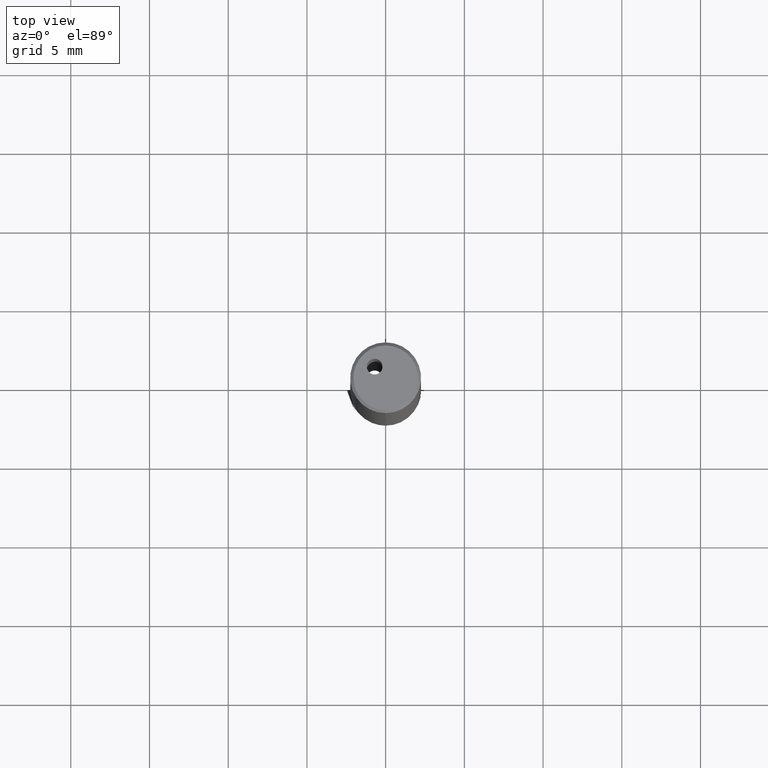
[diagram: clean part render]
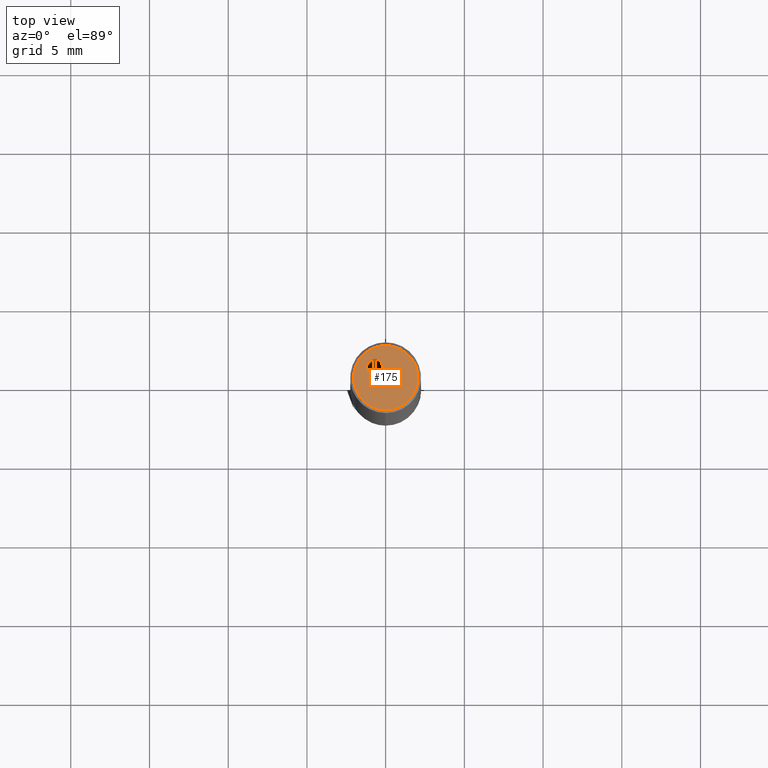
[diagram: same view with one face highlighted and labeled with its STEP entity id]
A machine part, top view. The second image highlights one B-rep face of the part: STEP entity #175.
In plain terms, the highlighted planar face has unit normal (0, 0, -1).
Its self-contained STEP definition (entity closure, byte-faithful):
#125=EDGE_CURVE('NONE',#129,#263,#343,.T.);
#129=VERTEX_POINT('NONE',#347);
#159=EDGE_CURVE('NONE',#315,#195,#380,.T.);
#175=ADVANCED_FACE('NONE',(#396,#397),#398,.F.);
#189=EDGE_CURVE('NONE',#263,#129,#414,.T.);
#195=VERTEX_POINT('NONE',#421);
#233=EDGE_CURVE('NONE',#195,#315,#465,.T.);
#263=VERTEX_POINT('NONE',#497);
#315=VERTEX_POINT('NONE',#554);
#343=CIRCLE('',#573,2.05);
#347=CARTESIAN_POINT('',(0.0,2.05,0.0));
#380=CIRCLE('',#621,0.5);
#396=FACE_OUTER_BOUND('',#651,.T.);
#397=FACE_BOUND('',#652,.T.);
#398=PLANE('',#653);
#414=CIRCLE('',#680,2.05);
#421=CARTESIAN_POINT('',(-0.7,0.2,0.0));
#465=CIRCLE('',#753,0.5);
#497=CARTESIAN_POINT('',(2.63299061816681E-016,-2.05,0.0));
#554=CARTESIAN_POINT('',(-0.7,1.2,0.0));
#573=AXIS2_PLACEMENT_3D('',#955,#956,#957);
#621=AXIS2_PLACEMENT_3D('',#994,#995,#996);
#651=EDGE_LOOP('',(#1001,#1002));
#652=EDGE_LOOP('',(#1003,#1004));
#653=AXIS2_PLACEMENT_3D('',#1005,#1006,#1007);
#680=AXIS2_PLACEMENT_3D('',#1021,#1022,#1023);
#753=AXIS2_PLACEMENT_3D('',#1101,#1102,#1103);
#955=CARTESIAN_POINT('',(0.0,0.0,0.0));
#956=DIRECTION('',(-0.0,0.0,1.0));
#957=DIRECTION('',(0.0,1.0,0.0));
#994=CARTESIAN_POINT('',(-0.7,0.7,0.0));
#995=DIRECTION('',(0.0,0.0,1.0));
#996=DIRECTION('',(0.0,-1.0,0.0));
#1001=ORIENTED_EDGE('',*,*,#125,.T.);
#1002=ORIENTED_EDGE('',*,*,#189,.T.);
#1003=ORIENTED_EDGE('',*,*,#233,.F.);
#1004=ORIENTED_EDGE('',*,*,#159,.F.);
#1005=CARTESIAN_POINT('',(0.0,0.0,0.0));
#1006=DIRECTION('',(0.0,0.0,-1.0));
#1007=DIRECTION('',(1.0,0.0,0.0));
#1021=CARTESIAN_POINT('',(0.0,0.0,0.0));
#1022=DIRECTION('',(-0.0,0.0,1.0));
#1023=DIRECTION('',(0.0,1.0,0.0));
#1101=CARTESIAN_POINT('',(-0.7,0.7,0.0));
#1102=DIRECTION('',(0.0,0.0,1.0));
#1103=DIRECTION('',(0.0,-1.0,0.0));